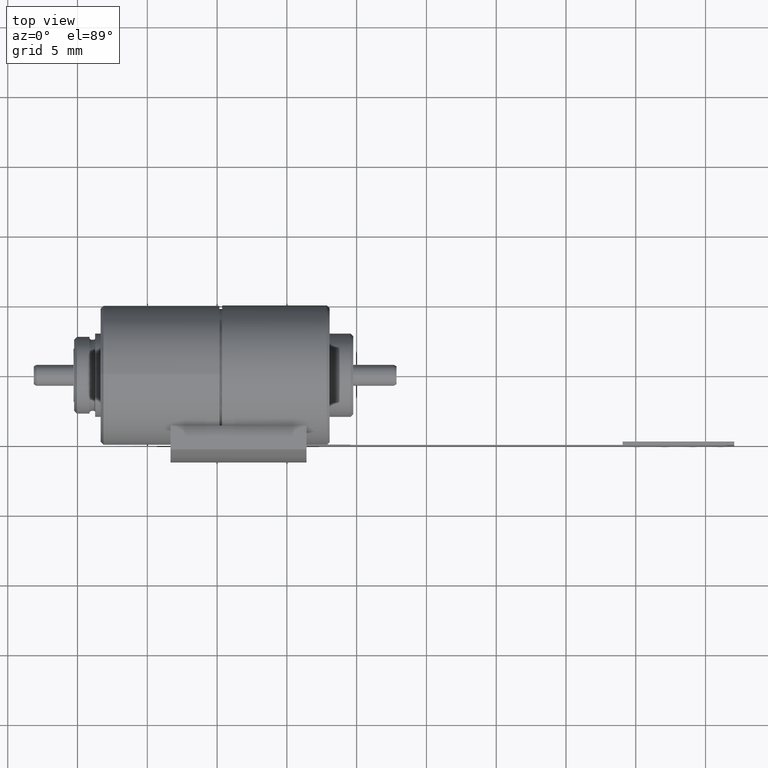
[diagram: clean part render]
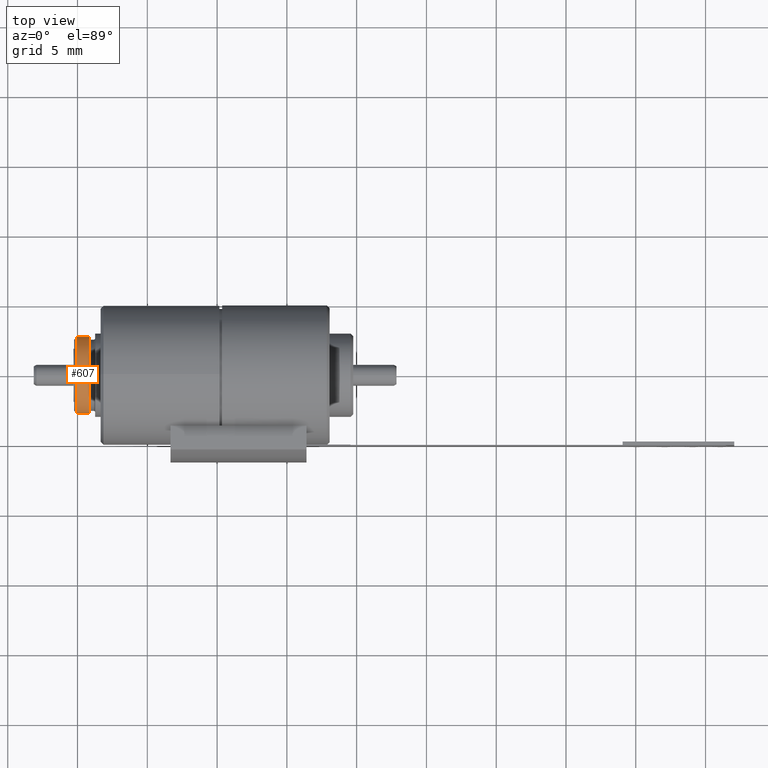
[diagram: same view with one face highlighted and labeled with its STEP entity id]
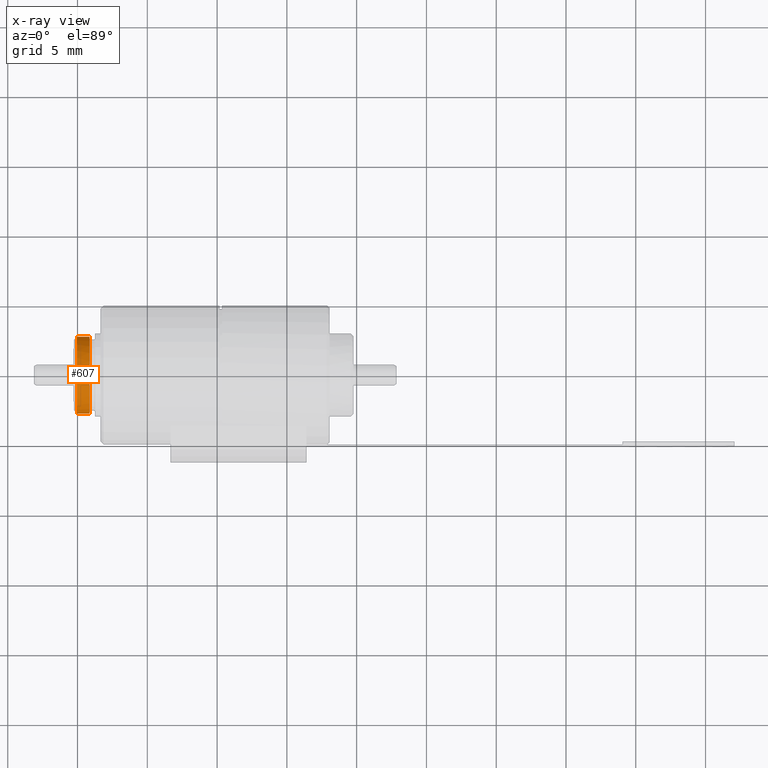
[diagram: x-ray of the same camera — body ghosted, the highlighted face saturated]
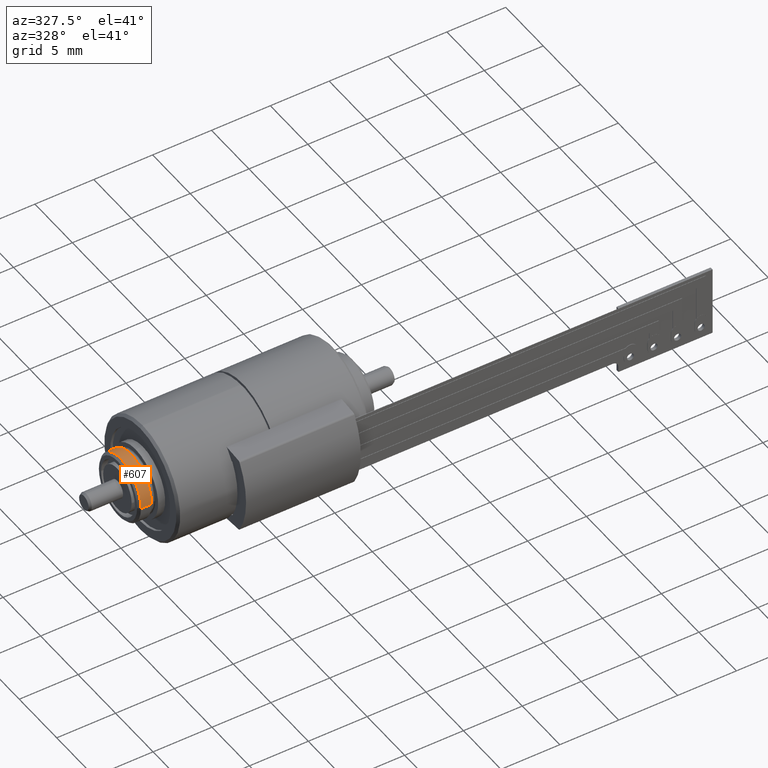
[diagram: same view with one face highlighted and labeled with its STEP entity id]
A machine part, top view. The second image highlights one B-rep face of the part: STEP entity #607.
The next image is the same camera in x-ray: the body ghosted, the highlighted face saturated — about 0% of this face is hidden behind the body in this view.
A second angle (auxiliary view) of the same face is appended — the face is thin or edge-on in the first view.
In plain terms, the highlighted cylindrical surface (partial cylindrical patch) has radius 2.75 mm, axis along (-1, 0, 0).
Its self-contained STEP definition (entity closure, byte-faithful):
#48=CARTESIAN_POINT('',(1.02E1,0.E0,0.E0));
#49=DIRECTION('',(-1.E0,0.E0,0.E0));
#50=DIRECTION('',(0.E0,1.E0,0.E0));
#51=AXIS2_PLACEMENT_3D('',#48,#49,#50);
#53=CARTESIAN_POINT('',(1.02E1,0.E0,0.E0));
#54=DIRECTION('',(-1.E0,0.E0,0.E0));
#55=DIRECTION('',(0.E0,0.E0,-1.E0));
#56=AXIS2_PLACEMENT_3D('',#53,#54,#55);
#72=DIRECTION('',(-1.E0,0.E0,2.839138620991E-10));
#73=VECTOR('',#72,9.E-1);
#74=CARTESIAN_POINT('',(1.02E1,-2.75E0,-5.809368532499E-10));
#75=LINE('',#74,#73);
#76=DIRECTION('',(-1.E0,0.E0,-3.141031596629E-10));
#77=VECTOR('',#76,9.E-1);
#78=CARTESIAN_POINT('',(1.02E1,2.75E0,2.826925628745E-10));
#79=LINE('',#78,#77);
#80=CARTESIAN_POINT('',(9.3E0,0.E0,0.E0));
#81=DIRECTION('',(1.E0,0.E0,0.E0));
#82=DIRECTION('',(0.E0,-1.E0,0.E0));
#83=AXIS2_PLACEMENT_3D('',#80,#81,#82);
#421=CARTESIAN_POINT('',(1.02E1,2.75E0,2.826925628745E-10));
#422=VERTEX_POINT('',#421);
#423=CARTESIAN_POINT('',(1.02E1,0.E0,-2.75E0));
#424=VERTEX_POINT('',#423);
#425=CARTESIAN_POINT('',(1.02E1,-2.75E0,-4.881216504965E-10));
#426=VERTEX_POINT('',#425);
#429=CARTESIAN_POINT('',(9.3E0,-2.75E0,-3.254143773607E-10));
#430=VERTEX_POINT('',#429);
#431=CARTESIAN_POINT('',(9.3E0,2.75E0,0.E0));
#432=VERTEX_POINT('',#431);
#594=CARTESIAN_POINT('',(1.04E1,0.E0,0.E0));
#595=DIRECTION('',(1.E0,0.E0,0.E0));
#596=DIRECTION('',(0.E0,1.E0,0.E0));
#597=AXIS2_PLACEMENT_3D('',#594,#595,#596);
#598=CYLINDRICAL_SURFACE('',#597,2.75E0);
#599=ORIENTED_EDGE('',*,*,#555,.F.);
#600=ORIENTED_EDGE('',*,*,#553,.F.);
#601=ORIENTED_EDGE('',*,*,#589,.T.);
#603=ORIENTED_EDGE('',*,*,#602,.F.);
#604=ORIENTED_EDGE('',*,*,#585,.F.);
#605=EDGE_LOOP('',(#599,#600,#601,#603,#604));
#606=FACE_OUTER_BOUND('',#605,.F.);
#607=ADVANCED_FACE('',(#606),#598,.T.);
#52=CIRCLE('',#51,2.75E0);
#57=CIRCLE('',#56,2.75E0);
#84=CIRCLE('',#83,2.75E0);
#553=EDGE_CURVE('',#422,#424,#52,.T.);
#555=EDGE_CURVE('',#424,#426,#57,.T.);
#585=EDGE_CURVE('',#426,#430,#75,.T.);
#589=EDGE_CURVE('',#422,#432,#79,.T.);
#602=EDGE_CURVE('',#430,#432,#84,.T.);